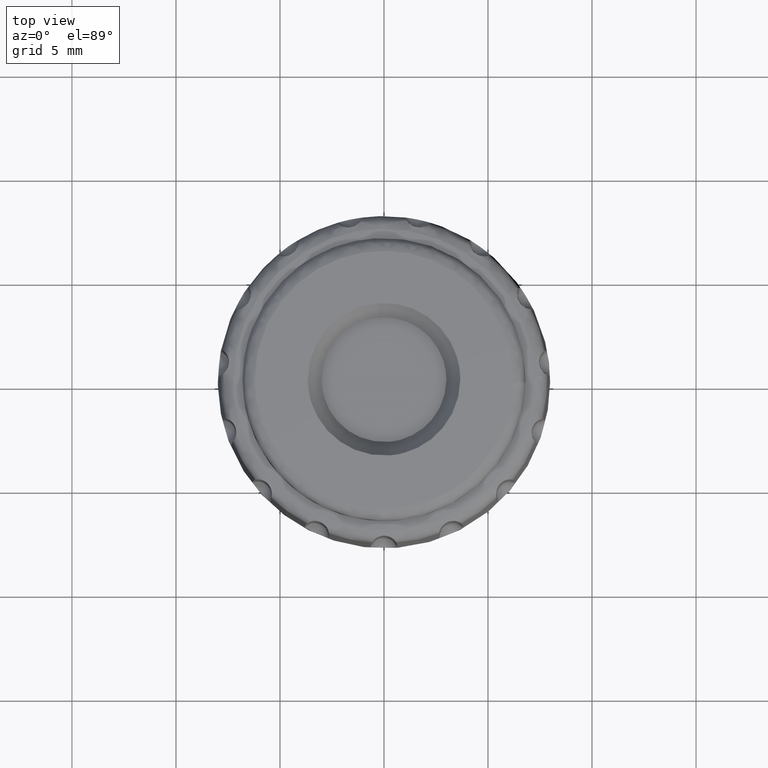
[diagram: clean part render]
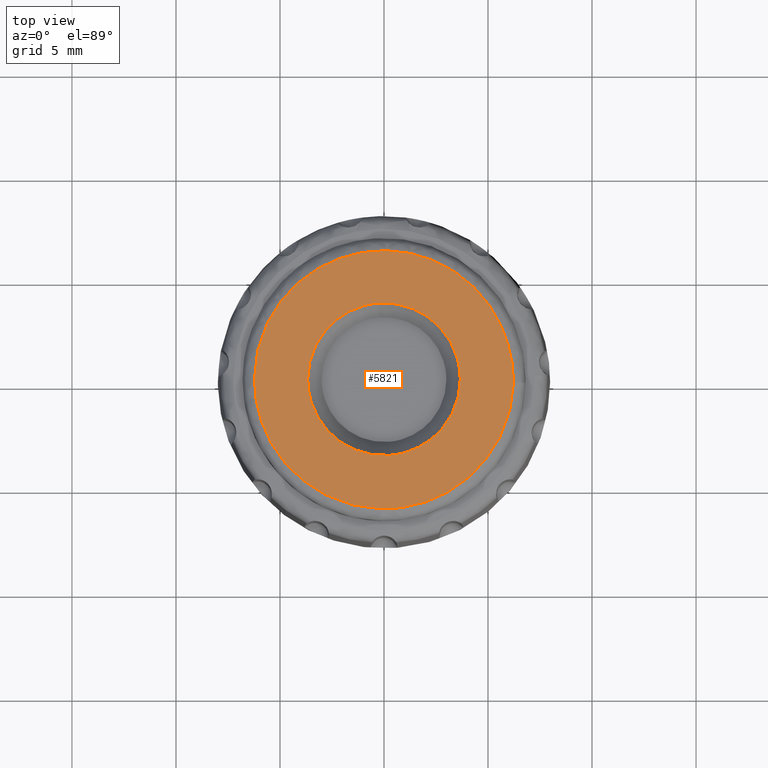
[diagram: same view with one face highlighted and labeled with its STEP entity id]
A machine part, top view. The second image highlights one B-rep face of the part: STEP entity #5821.
In plain terms, the highlighted face is a freeform B-spline surface patch.
Its self-contained STEP definition (entity closure, byte-faithful):
#886=CARTESIAN_POINT('',(-0.287849710448553,3.657477354075123,10.955126627765351));
#887=VERTEX_POINT('',#886);
#893=CARTESIAN_POINT('',(-3.668787000000000,0.0,10.955126627763660));
#894=VERTEX_POINT('',#893);
#895=CARTESIAN_POINT('',(-3.668787000000000,0.0,10.955126627763660));
#896=CARTESIAN_POINT('',(-3.668786999999999,3.391391818699920,10.955126627763658));
#897=CARTESIAN_POINT('',(-0.287849710448553,3.657477354075123,10.955126627765349));
#905=(BOUNDED_CURVE()B_SPLINE_CURVE(2,(#895,#896,#897),.UNSPECIFIED.,.F.,.U.)B_SPLINE_CURVE_WITH_KNOTS((3,3),(0.0,0.236331300631793),.UNSPECIFIED.)CURVE()GEOMETRIC_REPRESENTATION_ITEM()RATIONAL_B_SPLINE_CURVE((1.0,0.723120658606337,0.969723356169784))REPRESENTATION_ITEM(''));
#906=EDGE_CURVE('',#894,#887,#905,.T.);
#908=CARTESIAN_POINT('',(0.287849710448552,-3.657477354075123,10.955126627765351));
#909=VERTEX_POINT('',#908);
#910=CARTESIAN_POINT('',(0.287849710448552,-3.657477354075123,10.955126627765349));
#911=CARTESIAN_POINT('',(0.144147033828780,-3.668787000000000,10.955126627763661));
#912=CARTESIAN_POINT('',(0.0,-3.668787000000000,10.955126627763660));
#913=CARTESIAN_POINT('',(-3.668787000000000,-3.668787000000000,10.955126627763660));
#914=CARTESIAN_POINT('',(-3.668787000000000,0.0,10.955126627763660));
#922=(BOUNDED_CURVE()B_SPLINE_CURVE(2,(#910,#911,#912,#913,#914),.UNSPECIFIED.,.F.,.U.)B_SPLINE_CURVE_WITH_KNOTS((3,2,3),(0.736331300631793,0.750000000000000,1.0),.UNSPECIFIED.)CURVE()GEOMETRIC_REPRESENTATION_ITEM()RATIONAL_B_SPLINE_CURVE((0.969723356169784,0.983986122580210,1.0,0.707106781186548,1.0))REPRESENTATION_ITEM(''));
#923=EDGE_CURVE('',#909,#894,#922,.T.);
#999=CARTESIAN_POINT('',(3.668787000000000,0.0,10.955126627763660));
#1000=VERTEX_POINT('',#999);
#1001=CARTESIAN_POINT('',(3.668787000000000,0.0,10.955126627763660));
#1002=CARTESIAN_POINT('',(3.668787000000001,-3.391391818699923,10.955126627763660));
#1003=CARTESIAN_POINT('',(0.287849710448552,-3.657477354075122,10.955126627765345));
#1011=(BOUNDED_CURVE()B_SPLINE_CURVE(2,(#1001,#1002,#1003),.UNSPECIFIED.,.F.,.U.)B_SPLINE_CURVE_WITH_KNOTS((3,3),(0.500000000000000,0.736331300631794),.UNSPECIFIED.)CURVE()GEOMETRIC_REPRESENTATION_ITEM()RATIONAL_B_SPLINE_CURVE((1.0,0.723120658606337,0.969723356169784))REPRESENTATION_ITEM(''));
#1012=EDGE_CURVE('',#1000,#909,#1011,.T.);
#1014=CARTESIAN_POINT('',(-0.287849710448553,3.657477354075123,10.955126627765351));
#1015=CARTESIAN_POINT('',(-0.144147033828781,3.668787000000000,10.955126627763661));
#1016=CARTESIAN_POINT('',(0.0,3.668787000000000,10.955126627763660));
#1017=CARTESIAN_POINT('',(3.668787000000000,3.668787000000000,10.955126627763660));
#1018=CARTESIAN_POINT('',(3.668787000000000,0.0,10.955126627763660));
#1026=(BOUNDED_CURVE()B_SPLINE_CURVE(2,(#1014,#1015,#1016,#1017,#1018),.UNSPECIFIED.,.F.,.U.)B_SPLINE_CURVE_WITH_KNOTS((3,2,3),(0.236331300631793,0.250000000000000,0.500000000000000),.UNSPECIFIED.)CURVE()GEOMETRIC_REPRESENTATION_ITEM()RATIONAL_B_SPLINE_CURVE((0.969723356169784,0.983986122580210,1.0,0.707106781186548,1.0))REPRESENTATION_ITEM(''));
#1027=EDGE_CURVE('',#887,#1000,#1026,.T.);
#3610=CARTESIAN_POINT('',(-0.156432296181891,-6.222932717152220,10.870779798246550));
#3611=VERTEX_POINT('',#3610);
#3625=CARTESIAN_POINT('',(-6.224898594377520,0.0,10.870779798764360));
#3626=VERTEX_POINT('',#3625);
#3627=CARTESIAN_POINT('',(-0.156432296181891,-6.222932717152220,10.870779798246545));
#3628=CARTESIAN_POINT('',(-6.224898594377521,-6.070383390574622,10.870779798764360));
#3629=CARTESIAN_POINT('',(-6.224898594377520,0.0,10.870779798764360));
#3637=(BOUNDED_CURVE()B_SPLINE_CURVE(2,(#3627,#3628,#3629),.UNSPECIFIED.,.F.,.U.)B_SPLINE_CURVE_WITH_KNOTS((3,3),(0.754420108233949,1.0),.UNSPECIFIED.)CURVE()GEOMETRIC_REPRESENTATION_ITEM()RATIONAL_B_SPLINE_CURVE((0.989826157673086,0.712285260099128,1.0))REPRESENTATION_ITEM(''));
#3638=EDGE_CURVE('',#3611,#3626,#3637,.T.);
#3640=CARTESIAN_POINT('',(6.222932735984559,-0.156432296652698,10.870779797464101));
#3641=VERTEX_POINT('',#3640);
#3642=CARTESIAN_POINT('',(-6.224898594377520,0.0,10.870779798764360));
#3643=CARTESIAN_POINT('',(-6.225428288926094,0.828443818781492,10.870757797845600));
#3644=CARTESIAN_POINT('',(-6.057743514984760,1.656746444434146,10.870768468207080));
#3645=CARTESIAN_POINT('',(-5.733117575867198,2.419032988718875,10.870872047049820));
#3646=CARTESIAN_POINT('',(-5.418164416272751,3.158605914688489,10.870972539585569));
#3647=CARTESIAN_POINT('',(-4.957970534058402,3.836137524522982,10.871113651535230));
#3648=CARTESIAN_POINT('',(-4.382542894389676,4.397855091835266,10.871233754897469));
#3649=CARTESIAN_POINT('',(-3.873672803249580,4.894600903068377,10.871339966356020));
#3650=CARTESIAN_POINT('',(-3.279385524289549,5.303711425081450,10.871371953526220));
#3651=CARTESIAN_POINT('',(-2.631059577851976,5.596624269461654,10.871089377129630));
#3652=CARTESIAN_POINT('',(-2.553834433822436,5.631514492072144,10.871055718129790));
#3653=CARTESIAN_POINT('',(-2.477086853337319,5.667546512173648,10.871100613934050));
#3654=CARTESIAN_POINT('',(-2.398653138198732,5.699814683244703,10.871082402892419));
#3655=CARTESIAN_POINT('',(-2.228347639659009,5.769879539301959,10.871042860706790));
#3656=CARTESIAN_POINT('',(-2.056292315356216,5.836162584679627,10.871111956475580));
#3657=CARTESIAN_POINT('',(-1.880208911263218,5.891200111244644,10.871082402892419));
#3658=CARTESIAN_POINT('',(-1.692331776441478,5.949923946417944,10.871050869866600));
#3659=CARTESIAN_POINT('',(-1.502435066540500,6.002824192252763,10.871105962070340));
#3660=CARTESIAN_POINT('',(-1.309528596280515,6.043720638501263,10.871082402892419));
#3661=CARTESIAN_POINT('',(-0.819547323405180,6.147597365714774,10.871022562722350));
#3662=CARTESIAN_POINT('',(-0.317048742900484,6.198004410169658,10.871128612018261));
#3663=CARTESIAN_POINT('',(0.185636481569827,6.181178156098794,10.871082402892410));
#3664=CARTESIAN_POINT('',(0.574338330351775,6.168167238436929,10.871046671639990));
#3665=CARTESIAN_POINT('',(0.962524149854262,6.122077683987000,10.871110121695841));
#3666=CARTESIAN_POINT('',(1.342914846940735,6.036389981983327,10.871082402892419));
#3667=CARTESIAN_POINT('',(2.181075614539781,5.847583918545688,10.871021326704881));
#3668=CARTESIAN_POINT('',(2.982600642867333,5.488142669324497,10.871152441283980));
#3669=CARTESIAN_POINT('',(3.673845271412658,4.974362795619291,10.871082402892419));
#3670=CARTESIAN_POINT('',(4.063269418514799,4.684916366882555,10.871042945600790));
#3671=CARTESIAN_POINT('',(4.420884161406255,4.352786914947910,10.871114164148450));
#3672=CARTESIAN_POINT('',(4.731966221230796,3.981195797979957,10.871082402892419));
#3673=CARTESIAN_POINT('',(5.337692519373538,3.257648731875674,10.871020558670191));
#3674=CARTESIAN_POINT('',(5.778341344372775,2.400749774731187,10.871155271850730));
#3675=CARTESIAN_POINT('',(6.001718721028094,1.491173558358017,10.871088416120390));
#3676=CARTESIAN_POINT('',(6.009612368627475,1.459031207040554,10.871086053591190));
#3677=CARTESIAN_POINT('',(6.019727521191292,1.427429630414135,10.871146257776211));
#3678=CARTESIAN_POINT('',(6.027117272266367,1.395153956674526,10.871144471048639));
#3679=CARTESIAN_POINT('',(6.052703852879750,1.283401325280060,10.871138284609000));
#3680=CARTESIAN_POINT('',(6.083123262860094,1.172672561339765,10.871267536263190));
#3681=CARTESIAN_POINT('',(6.103296986996438,1.059691992610161,10.871272469409231));
#3682=CARTESIAN_POINT('',(6.123108148422706,0.948741913685396,10.871277313896639));
#3683=CARTESIAN_POINT('',(6.145795728008227,0.838246022632612,10.871295440781960));
#3684=CARTESIAN_POINT('',(6.160141805171354,0.726368091753899,10.871290054761079));
#3685=CARTESIAN_POINT('',(6.170221278567461,0.647763284664065,10.871286270573011));
#3686=CARTESIAN_POINT('',(6.181925176618949,0.569344900413813,10.871249787769580));
#3687=CARTESIAN_POINT('',(6.189290658755425,0.490406091561679,10.871233748641520));
#3688=CARTESIAN_POINT('',(6.209356586227648,0.275351546072212,10.871190052930331));
#3689=CARTESIAN_POINT('',(6.224686075303529,0.059731868519337,10.870932623660661));
#3690=CARTESIAN_POINT('',(6.222932735984559,-0.156432296652698,10.870779797464101));
#3691=B_SPLINE_CURVE_WITH_KNOTS('',3,(#3642,#3643,#3644,#3645,#3646,#3647,#3648,#3649,#3650,#3651,#3652,#3653,#3654,#3655,#3656,#3657,#3658,#3659,#3660,#3661,#3662,#3663,#3664,#3665,#3666,#3667,#3668,#3669,#3670,#3671,#3672,#3673,#3674,#3675,#3676,#3677,#3678,#3679,#3680,#3681,#3682,#3683,#3684,#3685,#3686,#3687,#3688,#3689,#3690),.UNSPECIFIED.,.F.,.U.,(4,3,3,3,3,3,3,3,3,3,3,3,3,3,3,3,4),(0.0,2.485331965238959,4.896609256329413,7.028983181898308,7.282980240679835,7.834491738598542,8.422942425271366,9.917603626068440,11.073351883170400,13.619951612720641,15.054620884260050,17.848150370977638,17.946867338903431,18.288669062950831,18.624327917266221,18.860159946731081,19.502641770892179),.UNSPECIFIED.);
#3692=EDGE_CURVE('',#3626,#3641,#3691,.T.);
#3732=CARTESIAN_POINT('',(6.222932735984559,-0.156432296652698,10.870779797464101));
#3733=CARTESIAN_POINT('',(6.070383390642336,-6.224898594377520,10.870779798764360));
#3734=CARTESIAN_POINT('',(0.0,-6.224898594377520,10.870779798764360));
#3735=CARTESIAN_POINT('',(-0.078228500667137,-6.224898594377520,10.870779798764357));
#3736=CARTESIAN_POINT('',(-0.156432296181891,-6.222932717152221,10.870779798246549));
#3744=(BOUNDED_CURVE()B_SPLINE_CURVE(2,(#3732,#3733,#3734,#3735,#3736),.UNSPECIFIED.,.F.,.U.)B_SPLINE_CURVE_WITH_KNOTS((3,2,3),(0.504420108231998,0.750000000000000,0.754420108233948),.UNSPECIFIED.)CURVE()GEOMETRIC_REPRESENTATION_ITEM()RATIONAL_B_SPLINE_CURVE((0.989826157677496,0.712285260096842,1.0,0.994821521087420,0.989826157673087))REPRESENTATION_ITEM(''));
#3745=EDGE_CURVE('',#3641,#3611,#3744,.T.);
#5786=CARTESIAN_POINT('',(-6.842489736168451,-6.838481548222559,10.687726632229371));
#5787=CARTESIAN_POINT('',(-3.423027445822762,-6.842044615305819,10.843873499993812));
#5788=CARTESIAN_POINT('',(3.422045248219956,-6.842044615305819,10.843873499993812));
#5789=CARTESIAN_POINT('',(6.840528407956676,-6.838483591625804,10.687816181768735));
#5790=CARTESIAN_POINT('',(-6.846050713908185,-3.421020220007861,10.843690523233509));
#5791=CARTESIAN_POINT('',(-3.424809791042303,-3.422803608811754,10.999999999999940));
#5792=CARTESIAN_POINT('',(3.423827082016428,-3.422803608811754,10.999999999999940));
#5793=CARTESIAN_POINT('',(6.844088366043639,-3.421021242773191,10.843780166004116));
#5794=CARTESIAN_POINT('',(-6.846050713908185,3.401539025812922,10.843690523233509));
#5795=CARTESIAN_POINT('',(-3.424809791042303,3.403312259007851,10.999999999999940));
#5796=CARTESIAN_POINT('',(3.423827082016428,3.403312259007851,10.999999999999940));
#5797=CARTESIAN_POINT('',(6.844088366043639,3.401540042754057,10.843780166004116));
#5798=CARTESIAN_POINT('',(-6.842530156277053,6.799579592535971,10.689496954279303));
#5799=CARTESIAN_POINT('',(-3.423047676942778,6.803122411398069,10.845645667318337));
#5800=CARTESIAN_POINT('',(3.422065473534890,6.803122411398069,10.845645667318337));
#5801=CARTESIAN_POINT('',(6.840568816491352,6.799581624326947,10.689586504876642));
#5809=(BOUNDED_SURFACE()B_SPLINE_SURFACE(2,2,((#5786,#5790,#5794,#5798),(#5787,#5791,#5795,#5799),(#5788,#5792,#5796,#5800),(#5789,#5793,#5797,#5801)),.UNSPECIFIED.,.F.,.F.,.U.)B_SPLINE_SURFACE_WITH_KNOTS((3,1,3),(3,1,3),(59.045757293701172,65.726838369230023,72.406002386856073),(59.049670931816102,65.726838369230023,72.365982296943670),.UNSPECIFIED.)GEOMETRIC_REPRESENTATION_ITEM()RATIONAL_B_SPLINE_SURFACE(((1.001041995851081,1.000521303204659,1.000521303204659,1.001036082508317),(1.000520692646422,1.0,1.0,1.000514779303658),(1.000520692646422,1.0,1.0,1.000514779303658),(1.001041696730313,1.000521004083891,1.000521004083891,1.001035783387549)))REPRESENTATION_ITEM('')SURFACE());
#5810=ORIENTED_EDGE('',*,*,#3638,.F.);
#5811=ORIENTED_EDGE('',*,*,#3745,.F.);
#5812=ORIENTED_EDGE('',*,*,#3692,.F.);
#5813=EDGE_LOOP('',(#5810,#5811,#5812));
#5814=FACE_OUTER_BOUND('',#5813,.T.);
#5815=ORIENTED_EDGE('',*,*,#1012,.T.);
#5816=ORIENTED_EDGE('',*,*,#923,.T.);
#5817=ORIENTED_EDGE('',*,*,#906,.T.);
#5818=ORIENTED_EDGE('',*,*,#1027,.T.);
#5819=EDGE_LOOP('',(#5815,#5816,#5817,#5818));
#5820=FACE_BOUND('',#5819,.T.);
#5821=ADVANCED_FACE('',(#5814,#5820),#5809,.T.);